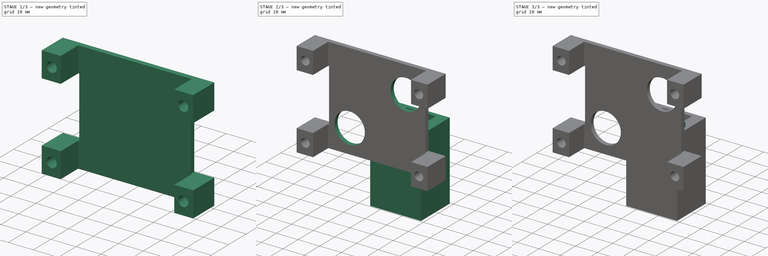
[diagram: build sequence overview — one tinted view per stage of 3, left to right]
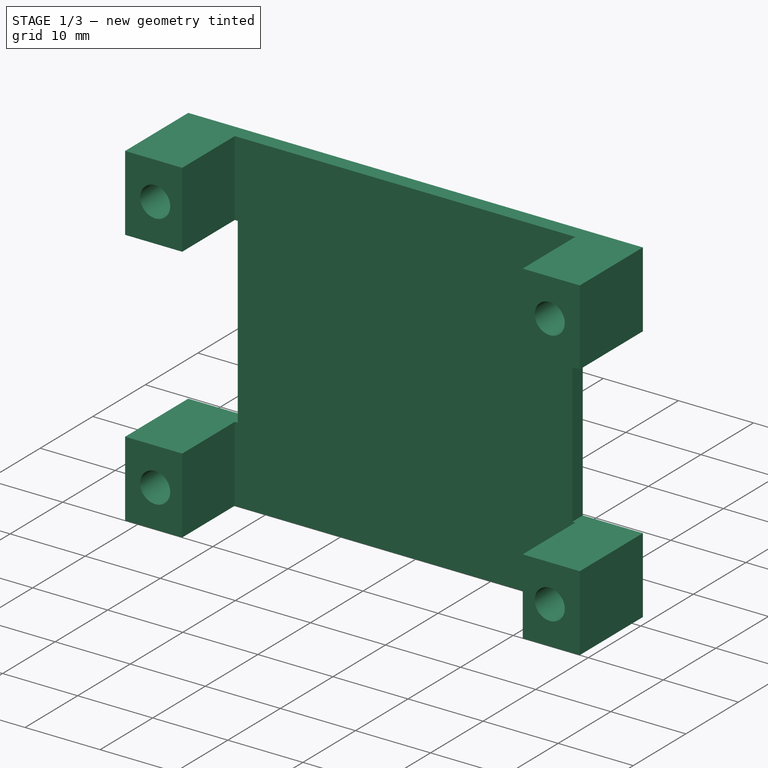
[diagram: stage 1 of 3 — iso view after this stage's code; geometry added in this stage tinted green]
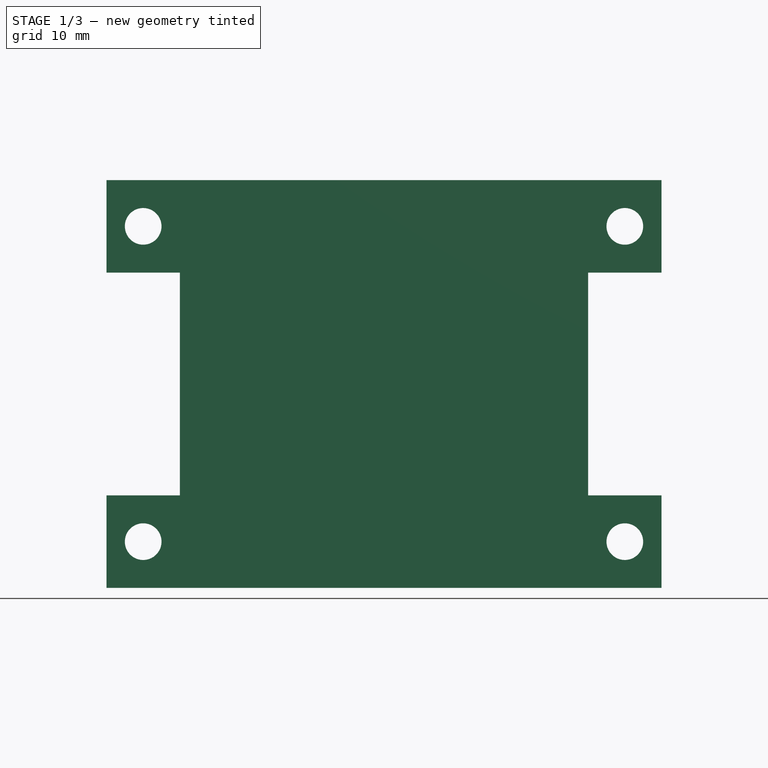
[diagram: stage 1 of 3 — front view after this stage's code; geometry added in this stage tinted green]
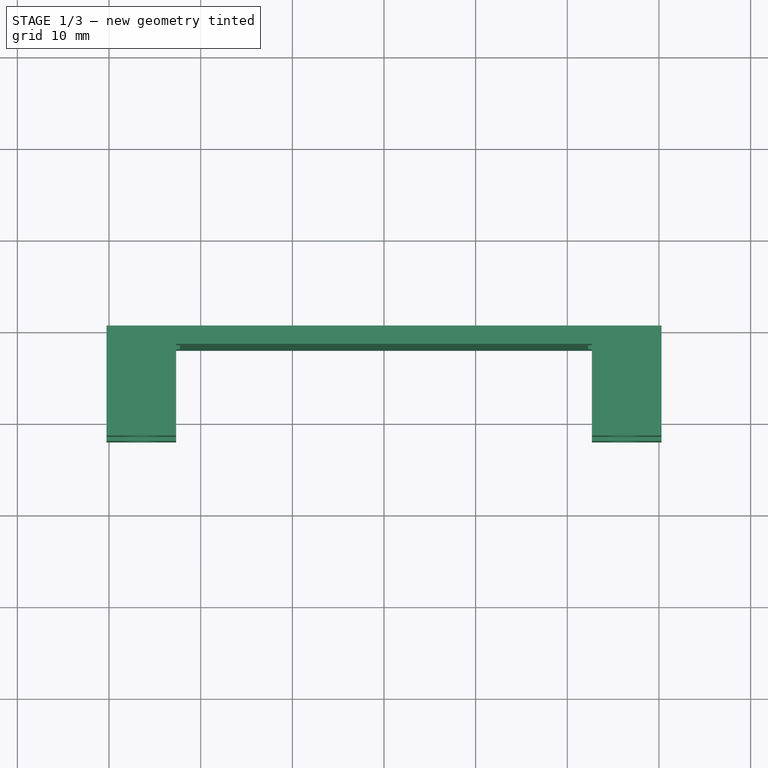
[diagram: stage 1 of 3 — top view after this stage's code; geometry added in this stage tinted green]
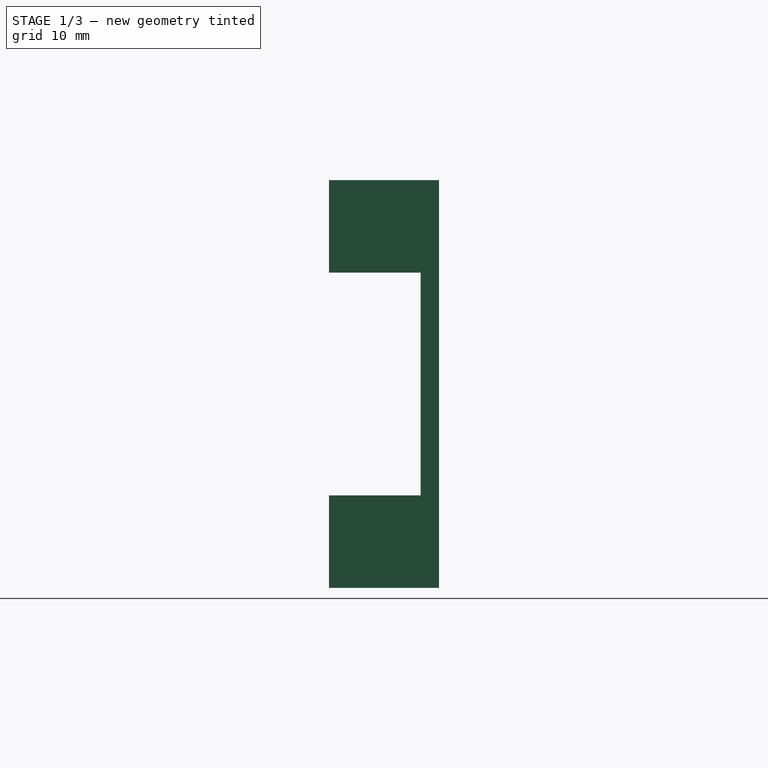
[diagram: stage 1 of 3 — right view after this stage's code; geometry added in this stage tinted green]
FCSTD DOCUMENT  (FreeCAD 2023.521R14555 (Git shallow))
Label: Lid
License: All rights reserved
LicenseURL: http://en.wikipedia.org/wiki/All_rights_reserved
objects: Sketcher::SketchObject×7, PartDesign::Pad×5, PartDesign::Pocket×2, PartDesign::Plane×1, PartDesign::Body×1, App::Part×1
note: 37 computed .brp shape members not serialized (recipe doc carries the construction recipe); baked Part::Feature solids carry a one-line shape summary decoded from their .brp

FEATURE [Sketcher::SketchObject] Sketch
  ArcFitTolerance = 0
  AttachmentSupport = -> [XZ_Plane]
  ExternalBSplineMaxDegree = 0
  ExternalBSplineTolerance = 0
  FullyConstrained = true
  InternalTolerance = 1e-06
  InvalidShape = false
  MakeInternals = false
  MapMode = 5
  Placement = pos=(0,0,0) rot=(1,0,0;1.5708rad)
  Support = -> [XZ_Plane]
  TreeRank = 0
  ValidateShape = false
  sketch-geometry (21):
    g0: LineSegment StartX=-22.275 StartY=22.25 StartZ=0 EndX=22.275 EndY=22.25 EndZ=0
    g1: LineSegment StartX=22.275 StartY=-22.25 StartZ=0 EndX=-22.275 EndY=-22.25 EndZ=0
    g2: GeomPoint [constr] X=0 Y=0 Z=0
    g3: LineSegment StartX=-22.275 StartY=22.25 StartZ=0 EndX=-30.275 EndY=22.25 EndZ=0
    g4: LineSegment StartX=-30.275 StartY=22.25 StartZ=0 EndX=-30.275 EndY=12.15 EndZ=0
    g5: LineSegment StartX=-30.275 StartY=12.15 StartZ=0 EndX=-22.275 EndY=12.15 EndZ=0
    g6: LineSegment StartX=-22.275 StartY=12.15 StartZ=0 EndX=-22.275 EndY=-12.15 EndZ=0
    g7: LineSegment StartX=-22.275 StartY=-12.15 StartZ=0 EndX=-30.275 EndY=-12.15 EndZ=0
    g8: LineSegment StartX=-30.275 StartY=-12.15 StartZ=0 EndX=-30.275 EndY=-22.25 EndZ=0
    g9: LineSegment StartX=-30.275 StartY=-22.25 StartZ=0 EndX=-22.275 EndY=-22.25 EndZ=0
    g10: LineSegment StartX=22.275 StartY=22.25 StartZ=0 EndX=30.275 EndY=22.25 EndZ=0
    g11: LineSegment StartX=30.275 StartY=22.25 StartZ=0 EndX=30.275 EndY=12.15 EndZ=0
    g12: LineSegment StartX=30.275 StartY=12.15 StartZ=0 EndX=22.275 EndY=12.15 EndZ=0
    g13: LineSegment StartX=22.275 StartY=12.15 StartZ=0 EndX=22.275 EndY=-12.15 EndZ=0
    g14: LineSegment StartX=22.275 StartY=-12.15 StartZ=0 EndX=30.275 EndY=-12.15 EndZ=0
    g15: LineSegment StartX=30.275 StartY=-12.15 StartZ=0 EndX=30.275 EndY=-22.25 EndZ=0
    g16: LineSegment StartX=30.275 StartY=-22.25 StartZ=0 EndX=22.275 EndY=-22.25 EndZ=0
    g17: Circle CenterX=-26.275 CenterY=17.2 CenterZ=0 NormalX=0 NormalY=0 NormalZ=1 AngleXU=0 Radius=2
    g18: Circle CenterX=26.275 CenterY=17.2 CenterZ=0 NormalX=0 NormalY=0 NormalZ=1 AngleXU=0 Radius=2
    g19: Circle CenterX=26.275 CenterY=-17.2 CenterZ=0 NormalX=0 NormalY=0 NormalZ=1 AngleXU=0 Radius=2
    g20: Circle CenterX=-26.275 CenterY=-17.2 CenterZ=0 NormalX=0 NormalY=0 NormalZ=1 AngleXU=0 Radius=2
  constraints (56):
    c: Horizontal(g0)
    c: Horizontal(g1)
    c: Symmetric(g0,g1,g2)
    c: Coincident(g2,g-1)
    c: DistanceX(g0,g0) = 44.55
    c: Coincident(g3,g0)
    c: Horizontal(g3)
    c: Coincident(g4,g3)
    c: Vertical(g4)
    c: Coincident(g5,g4)
    c: Horizontal(g5)
    c: Coincident(g6,g5)
    c: Vertical(g6)
    c: Coincident(g7,g6)
    c: Horizontal(g7)
    c: Coincident(g8,g7)
    c: Vertical(g8)
    c: Coincident(g9,g8)
    c: Horizontal(g9)
    c: Coincident(g1,g9)
    c: Vertical(g1,g0)
    c: DistanceY(g8,g3) = 44.5
    c: Equal(g4,g8)
    c: Coincident(g10,g0)
    c: Horizontal(g10)
    c: Coincident(g11,g10)
    c: Vertical(g11)
    c: Coincident(g12,g11)
    c: Horizontal(g12)
    c: Coincident(g13,g12)
    c: Horizontal(g14)
    c: Vertical(g15)
    c: Coincident(g16,g15)
    c: Horizontal(g16)
    c: Coincident(g1,g16)
    c: Equal(g8,g15)
    c: Equal(g15,g11)
    c: Coincident(g14,g15)
    c: Vertical(g0,g1)
    c: DistanceY(g15,g15) = 10.1
    c: DistanceX(g14,g14) = 8
    c: Equal(g12,g14)
    c: Equal(g14,g7)
    c: Equal(g7,g5)
    c: Vertical(g5,g0)
    c: Coincident(g13,g14)
    c: Vertical(g13)
    c: Vertical(g13,g1)
    c: Equal(g20,g17)
    c: Equal(g17,g18)
    c: Equal(g18,g19)
    c: Symmetric(g5,g3,g17)
    c: Diameter(g17) = 4
    c: Symmetric(g6,g8,g20)
    c: Symmetric(g13,g15,g19)
    c: Symmetric(g0,g11,g18)
FEATURE [PartDesign::Pad] Pad
  AddSubType = 0
  AutoTaperInnerAngle = true
  CheckUpToFaceLimits = true
  ClaimChildren = false
  Direction = (0,-1,-2e-16)
  Fit = 0
  FitJoin = 0
  InnerFit = 0
  InnerFitJoin = 0
  InvalidShape = false
  Length = 2
  Length2 = 10
  NewSolid = false
  Profile = -> Sketch
  ReferenceAxis = -> Sketch [N_Axis]
  Suppress = false
  TaperInnerAngle = 0
  TaperInnerAngleRev = 0
  TreeRank = 0
  Type = 0
  ValidateShape = true
  _ProfileBasedVersion = 0
FEATURE [Sketcher::SketchObject] Sketch001
  ArcFitTolerance = 0
  AttachmentSupport = -> [Pad]
  ExternalBSplineMaxDegree = 0
  ExternalBSplineTolerance = 0
  ExternalGeometry = -> [Pad]
  FullyConstrained = true
  InternalTolerance = 1e-06
  InvalidShape = false
  MakeInternals = false
  MapMode = 5
  Placement = pos=(0,-2,-4e-16) rot=(1,0,0;1.5708rad)
  Support = -> [Pad]
  TreeRank = 0
  ValidateShape = false
  sketch-geometry (20):
    g0: LineSegment StartX=-30.275 StartY=22.25 StartZ=0 EndX=-22.675 EndY=22.25 EndZ=0
    g1: LineSegment StartX=-22.675 StartY=22.25 StartZ=0 EndX=-22.675 EndY=12.15 EndZ=0
    g2: LineSegment StartX=-22.675 StartY=12.15 StartZ=0 EndX=-30.275 EndY=12.15 EndZ=0
    g3: LineSegment StartX=-30.275 StartY=12.15 StartZ=0 EndX=-30.275 EndY=22.25 EndZ=0
    g4: LineSegment StartX=-30.275 StartY=-22.25 StartZ=0 EndX=-22.675 EndY=-22.25 EndZ=0
    g5: LineSegment StartX=-22.675 StartY=-22.25 StartZ=0 EndX=-22.675 EndY=-12.15 EndZ=0
    g6: LineSegment StartX=-22.675 StartY=-12.15 StartZ=0 EndX=-30.275 EndY=-12.15 EndZ=0
    g7: LineSegment StartX=-30.275 StartY=-12.15 StartZ=0 EndX=-30.275 EndY=-22.25 EndZ=0
    g8: LineSegment StartX=30.275 StartY=-22.25 StartZ=0 EndX=22.675 EndY=-22.25 EndZ=0
    g9: LineSegment StartX=22.675 StartY=-22.25 StartZ=0 EndX=22.675 EndY=-12.15 EndZ=0
    g10: LineSegment StartX=22.675 StartY=-12.15 StartZ=0 EndX=30.275 EndY=-12.15 EndZ=0
    g11: LineSegment StartX=30.275 StartY=-12.15 StartZ=0 EndX=30.275 EndY=-22.25 EndZ=0
    g12: LineSegment StartX=30.275 StartY=22.25 StartZ=0 EndX=22.675 EndY=22.25 EndZ=0
    g13: LineSegment StartX=22.675 StartY=22.25 StartZ=0 EndX=22.675 EndY=12.15 EndZ=0
    g14: LineSegment StartX=22.675 StartY=12.15 StartZ=0 EndX=30.275 EndY=12.15 EndZ=0
    g15: LineSegment StartX=30.275 StartY=12.15 StartZ=0 EndX=30.275 EndY=22.25 EndZ=0
    g16: Circle CenterX=26.275 CenterY=17.2 CenterZ=0 NormalX=0 NormalY=0 NormalZ=1 AngleXU=0 Radius=2
    g17: Circle CenterX=26.275 CenterY=-17.2 CenterZ=0 NormalX=0 NormalY=0 NormalZ=1 AngleXU=0 Radius=2
    g18: Circle CenterX=-26.275 CenterY=-17.2 CenterZ=0 NormalX=0 NormalY=0 NormalZ=1 AngleXU=0 Radius=2
    g19: Circle CenterX=-26.275 CenterY=17.2 CenterZ=0 NormalX=0 NormalY=0 NormalZ=1 AngleXU=0 Radius=2
  constraints (52):
    c: Coincident(g0,g1)
    c: Coincident(g1,g2)
    c: Coincident(g2,g3)
    c: Coincident(g3,g0)
    c: Horizontal(g0)
    c: Horizontal(g2)
    c: Vertical(g1)
    c: Vertical(g3)
    c: Coincident(g0,g-3)
    c: Horizontal(g-4,g2)
    c: DistanceX(g2,g2) = 7.6
    c: Coincident(g4,g5)
    c: Coincident(g5,g6)
    c: Coincident(g6,g7)
    c: Coincident(g7,g4)
    c: Horizontal(g4)
    c: Horizontal(g6)
    c: Vertical(g5)
    c: Vertical(g7)
    c: Coincident(g4,g-8)
    c: Coincident(g8,g9)
    c: Coincident(g9,g10)
    c: Coincident(g10,g11)
    c: Coincident(g11,g8)
    c: Horizontal(g8)
    c: Horizontal(g10)
    c: Vertical(g9)
    c: Vertical(g11)
    c: Coincident(g8,g-7)
    c: Coincident(g12,g13)
    c: Coincident(g13,g14)
    c: Coincident(g14,g15)
    c: Coincident(g15,g12)
    c: Horizontal(g12)
    c: Horizontal(g14)
    c: Vertical(g13)
    c: Vertical(g15)
    c: Coincident(g12,g-6)
    c: Equal(g2,g14)
    c: Equal(g14,g8)
    c: Equal(g8,g4)
    c: Equal(g5,g1)
    c: Equal(g1,g15)
    c: Equal(g15,g11)
    c: Coincident(g16,g-9)
    c: Coincident(g18,g-11)
    c: Coincident(g17,g-10)
    c: Coincident(g19,g-12)
    c: Equal(g16,g-9)
    c: Equal(g-9,g17)
    c: Equal(g17,g18)
    c: Equal(g18,g19)
FEATURE [PartDesign::Pad] Pad001
  AddSubType = 0
  AutoTaperInnerAngle = true
  BaseFeature = -> Pad
  CheckUpToFaceLimits = true
  ClaimChildren = false
  Direction = (0,-1,-2e-16)
  Fit = 0
  FitJoin = 0
  InnerFit = 0
  InnerFitJoin = 0
  InvalidShape = false
  Length = 10
  Length2 = 10
  NewSolid = false
  Profile = -> Sketch001
  ReferenceAxis = -> Sketch001 [N_Axis]
  Suppress = false
  TaperInnerAngle = 0
  TaperInnerAngleRev = 0
  TreeRank = 0
  Type = 0
  ValidateShape = true
  _ProfileBasedVersion = 0
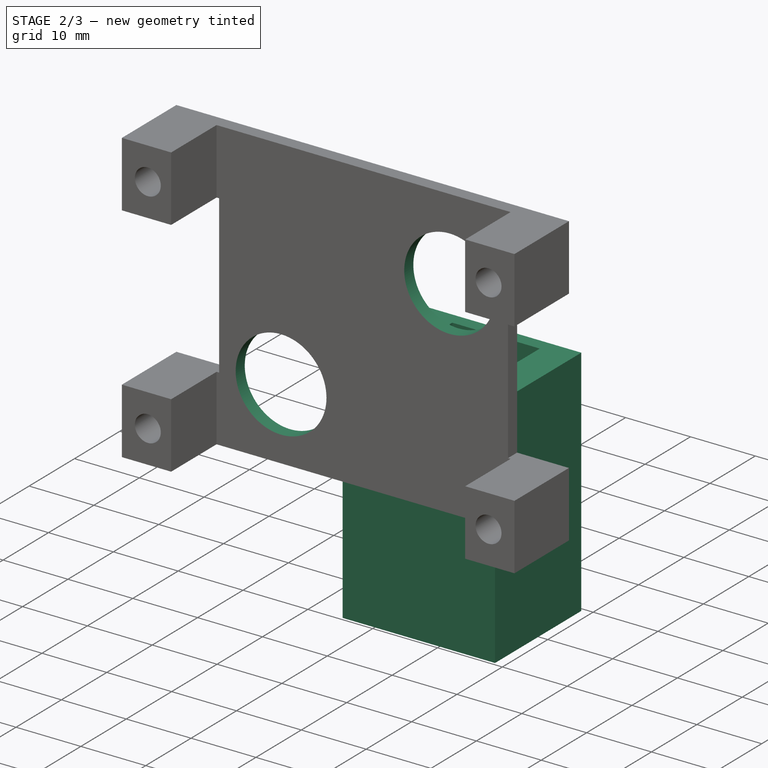
[diagram: stage 2 of 3 — iso view after this stage's code; geometry added in this stage tinted green]
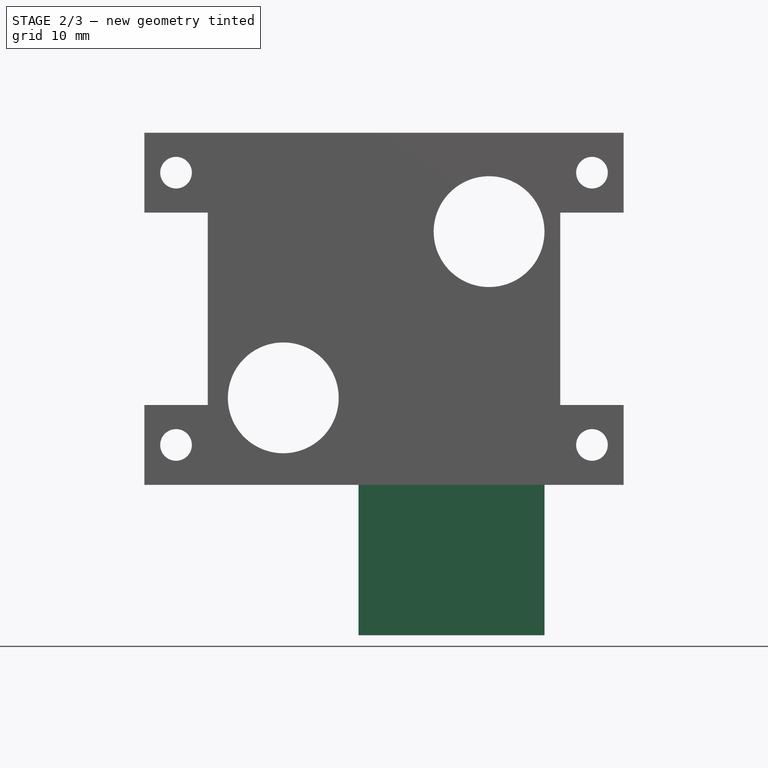
[diagram: stage 2 of 3 — front view after this stage's code; geometry added in this stage tinted green]
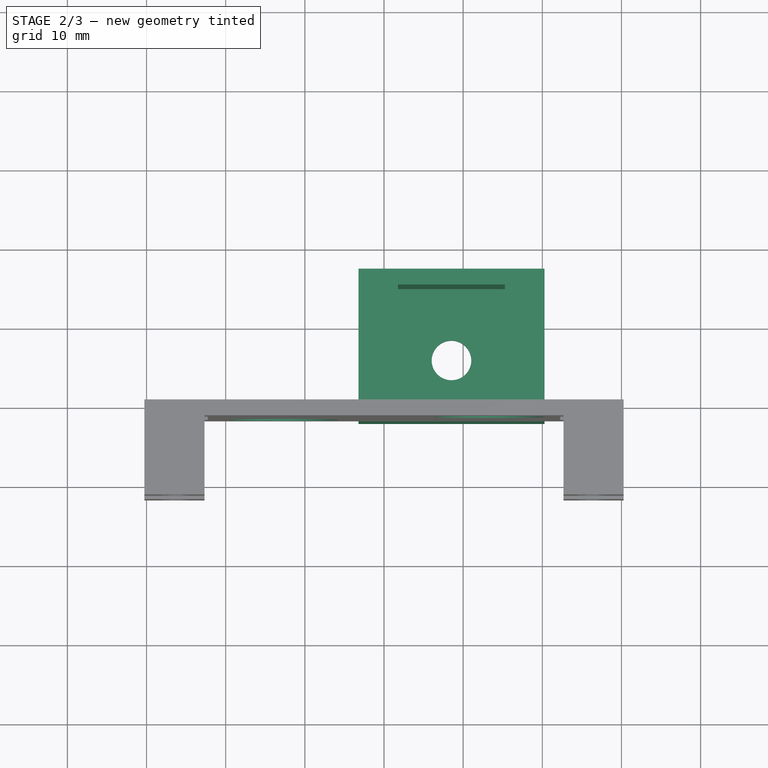
[diagram: stage 2 of 3 — top view after this stage's code; geometry added in this stage tinted green]
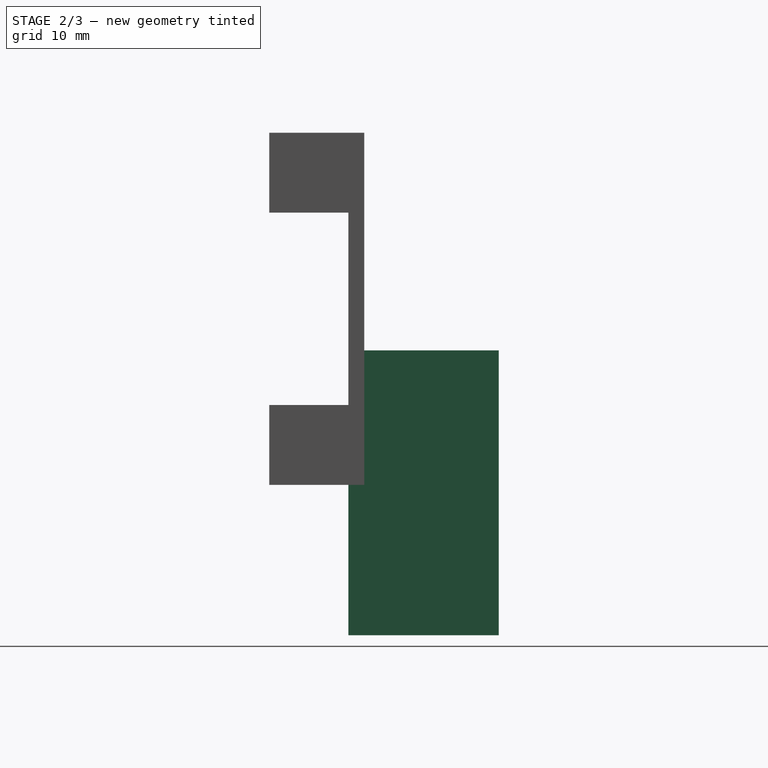
[diagram: stage 2 of 3 — right view after this stage's code; geometry added in this stage tinted green]
FEATURE [Sketcher::SketchObject] Sketch002
  ArcFitTolerance = 0
  AttachmentSupport = -> [Pad001]
  ExternalBSplineMaxDegree = 0
  ExternalBSplineTolerance = 0
  ExternalGeometry = -> [Pad001]
  FullyConstrained = true
  InternalTolerance = 1e-06
  InvalidShape = false
  MakeInternals = false
  MapMode = 5
  Placement = pos=(0,0,0) rot=(0,0.707107,0.707107;3.14159rad)
  Support = -> [Pad001]
  TreeRank = 0
  ValidateShape = false
  sketch-geometry (2):
    g0: Circle CenterX=-13.275 CenterY=9.75 CenterZ=0 NormalX=0 NormalY=0 NormalZ=1 AngleXU=0 Radius=7
    g1: Circle CenterX=12.725 CenterY=-11.25 CenterZ=0 NormalX=0 NormalY=0 NormalZ=1 AngleXU=0 Radius=7
  constraints (6):
    c: DistanceY(g1,g-3) = -11
    c: DistanceY(g0,g-3) = -32
    c: DistanceX(g0,g-3) = -9
    c: DistanceX(g1,g-3) = -35
    c: Diameter(g0) = 14
    c: Equal(g0,g1)
FEATURE [PartDesign::Pocket] Pocket
  AddSubType = 1
  AutoTaperInnerAngle = true
  BaseFeature = -> Pad001
  CheckUpToFaceLimits = true
  ClaimChildren = false
  Direction = (0,-1,-2e-16)
  Fit = 0
  FitJoin = 0
  InnerFit = 0
  InnerFitJoin = 0
  InvalidShape = false
  Length = 5
  Length2 = 5
  NewSolid = false
  Profile = -> Sketch002
  ReferenceAxis = -> Sketch002 [N_Axis]
  Suppress = false
  TaperInnerAngle = 0
  TaperInnerAngleRev = 0
  TreeRank = 0
  Type = 1
  ValidateShape = true
  _ProfileBasedVersion = 0
  _Version = 0
FEATURE [PartDesign::Plane] DatumPlane
  AttachmentOffset = pos=(0,0,-17) rot=(0,0,1;0rad)
  InvalidShape = false
  Length = 60.55
  MapMode = 5
  MinimumLength = 10
  MinimumWidth = 10
  Placement = pos=(0,-1.2e-15,-5.25) rot=(1,0,0;3.14159rad)
  ResizeMode = 0
  TreeRank = 0
  ValidateShape = false
  Width = 12
FEATURE [Sketcher::SketchObject] Sketch004
  ArcFitTolerance = 0
  AttachmentSupport = -> [DatumPlane]
  ExternalBSplineMaxDegree = 0
  ExternalBSplineTolerance = 0
  ExternalGeometry = -> [Pocket]
  FullyConstrained = true
  InternalTolerance = 1e-06
  InvalidShape = false
  MakeInternals = false
  MapMode = 5
  Placement = pos=(0,-1.2e-15,-5.25) rot=(1,0,0;3.14159rad)
  Support = -> [DatumPlane]
  TreeRank = 0
  ValidateShape = false
  sketch-geometry (11):
    g0: LineSegment StartX=1.775 StartY=-8.9e-15 StartZ=0 EndX=1.775 EndY=-15 EndZ=0
    g1: LineSegment StartX=1.775 StartY=-15 StartZ=0 EndX=15.275 EndY=-15 EndZ=0
    g2: LineSegment StartX=15.275 StartY=-15 StartZ=0 EndX=15.275 EndY=-8.9e-15 EndZ=0
    g3: LineSegment StartX=-3.225 StartY=0 StartZ=0 EndX=-3.225 EndY=-17 EndZ=0
    g4: LineSegment StartX=-3.225 StartY=-17 StartZ=0 EndX=20.275 EndY=-17 EndZ=0
    g5: LineSegment StartX=20.275 StartY=-17 StartZ=0 EndX=20.275 EndY=0 EndZ=0
    g6: LineSegment StartX=-3.225 StartY=0 StartZ=0 EndX=-3.225 EndY=2 EndZ=0
    g7: LineSegment StartX=-3.225 StartY=2 StartZ=0 EndX=20.275 EndY=2 EndZ=0
    g8: LineSegment StartX=20.275 StartY=2 StartZ=0 EndX=20.275 EndY=0 EndZ=0
    g9: LineSegment [constr] StartX=15.275 StartY=-15 StartZ=0 EndX=20.275 EndY=-15 EndZ=0
    g10: LineSegment StartX=1.775 StartY=-8.9e-15 StartZ=0 EndX=15.275 EndY=-8.9e-15 EndZ=0
  constraints (33):
    c: Coincident(g0,g1)
    c: Coincident(g1,g2)
    c: Horizontal(g1)
    c: Vertical(g0)
    c: Vertical(g2)
    c: DistanceY(g2,g2) = 15
    c: DistanceX(g0,g2) = 13.5
    c: PointOnObject(g3,g-1)
    c: Vertical(g3)
    c: Horizontal(g4)
    c: Vertical(g5)
    c: PointOnObject(g5,g-1)
    c: Coincident(g3,g4)
    c: Coincident(g4,g5)
    c: DistanceX(g3,g0) = 5
    c: DistanceY(g3,g0) = 2
    c: Vertical(g6)
    c: Horizontal(g7)
    c: Coincident(g7,g8)
    c: Vertical(g8)
    c: Coincident(g3,g6)
    c: Coincident(g6,g7)
    c: Coincident(g5,g8)
    c: Coincident(g9,g1)
    c: Horizontal(g9)
    c: Vertical(g5,g9)
    c: DistanceX(g9,g9) = 5
    c: Coincident(g10,g0)
    c: Coincident(g10,g2)
    c: Horizontal(g-4,g6)
    c: Horizontal(g10)
    c: Horizontal(g0,g-3)
    c: DistanceX(g7,g-4) = 2
FEATURE [PartDesign::Pad] Pad003
  AddSubType = 0
  AutoTaperInnerAngle = true
  BaseFeature = -> Pocket
  CheckUpToFaceLimits = true
  ClaimChildren = false
  Direction = (0,-1e-16,-1)
  Fit = 0
  FitJoin = 0
  InnerFit = 0
  InnerFitJoin = 0
  InvalidShape = false
  Length = 34
  Length2 = 10
  NewSolid = false
  Profile = -> Sketch004
  ReferenceAxis = -> Sketch004 [N_Axis]
  Suppress = false
  TaperInnerAngle = 0
  TaperInnerAngleRev = 0
  TreeRank = 0
  Type = 0
  ValidateShape = true
  _ProfileBasedVersion = 0
FEATURE [Sketcher::SketchObject] Sketch005
  ArcFitTolerance = 0
  AttachmentSupport = -> [Pad003]
  ExternalBSplineMaxDegree = 0
  ExternalBSplineTolerance = 0
  ExternalGeometry = -> [Pad003]
  FullyConstrained = true
  InternalTolerance = 1e-06
  InvalidShape = false
  MakeInternals = false
  MapMode = 5
  Placement = pos=(0,-4.1e-15,-39.25) rot=(1,0,0;3.14159rad)
  Support = -> [Pad003]
  TreeRank = 0
  ValidateShape = false
  sketch-geometry (6):
    g0: LineSegment StartX=-3.225 StartY=-17 StartZ=0 EndX=-3.225 EndY=2 EndZ=0
    g1: LineSegment StartX=-3.225 StartY=2 StartZ=0 EndX=20.275 EndY=2 EndZ=0
    g2: LineSegment StartX=20.275 StartY=-17 StartZ=0 EndX=-3.225 EndY=-17 EndZ=0
    g3: Circle CenterX=8.525 CenterY=-6 CenterZ=0 NormalX=0 NormalY=0 NormalZ=1 AngleXU=0 Radius=2.5
    g4: LineSegment StartX=20.275 StartY=-17 StartZ=0 EndX=20.275 EndY=2 EndZ=0
    g5: GeomPoint [constr] X=8.525 Y=-17 Z=0
  constraints (14):
    c: Coincident(g0,g1)
    c: Coincident(g2,g0)
    c: Horizontal(g1)
    c: DistanceY(g3,g1) = 8
    c: Diameter(g3) = 5
    c: Coincident(g4,g2)
    c: Coincident(g4,g1)
    c: Vertical(g4)
    c: Vertical(g5,g3)
    c: Symmetric(g0,g2,g5)
    c: Coincident(g1,g-3)
    c: Coincident(g0,g-4)
    c: Vertical(g0)
    c: Horizontal(g2)
FEATURE [PartDesign::Pad] Pad004
  AddSubType = 0
  AutoTaperInnerAngle = true
  BaseFeature = -> Pad003
  CheckUpToFaceLimits = true
  ClaimChildren = false
  Direction = (0,-1e-16,-1)
  Fit = 0
  FitJoin = 0
  InnerFit = 0
  InnerFitJoin = 0
  InvalidShape = false
  Length = 2
  Length2 = 10
  NewSolid = false
  Profile = -> Sketch005
  ReferenceAxis = -> Sketch005 [N_Axis]
  Suppress = false
  TaperInnerAngle = 0
  TaperInnerAngleRev = 0
  TreeRank = 0
  Type = 0
  ValidateShape = true
  _ProfileBasedVersion = 0
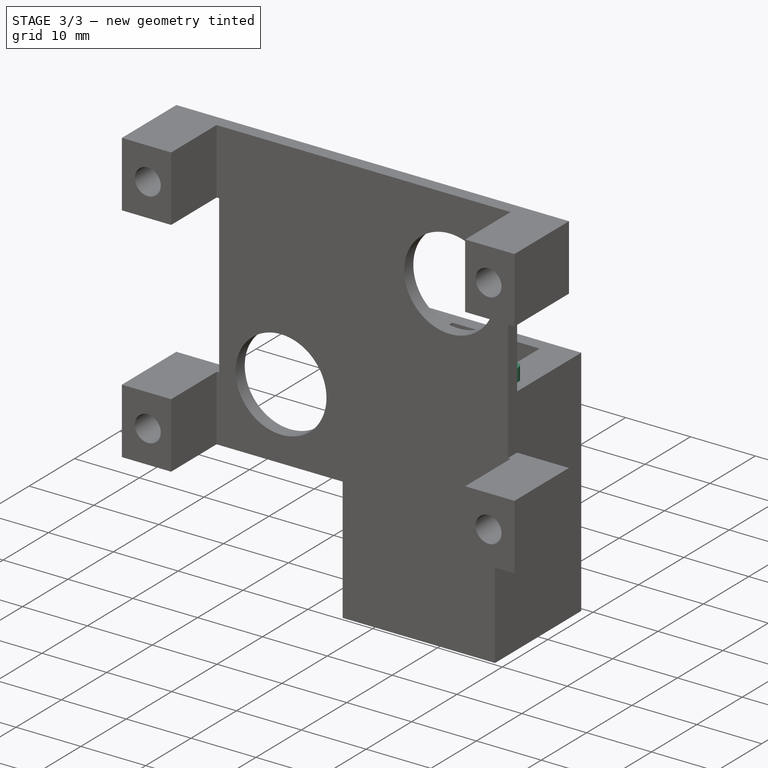
[diagram: stage 3 of 3 — iso view after this stage's code; geometry added in this stage tinted green]
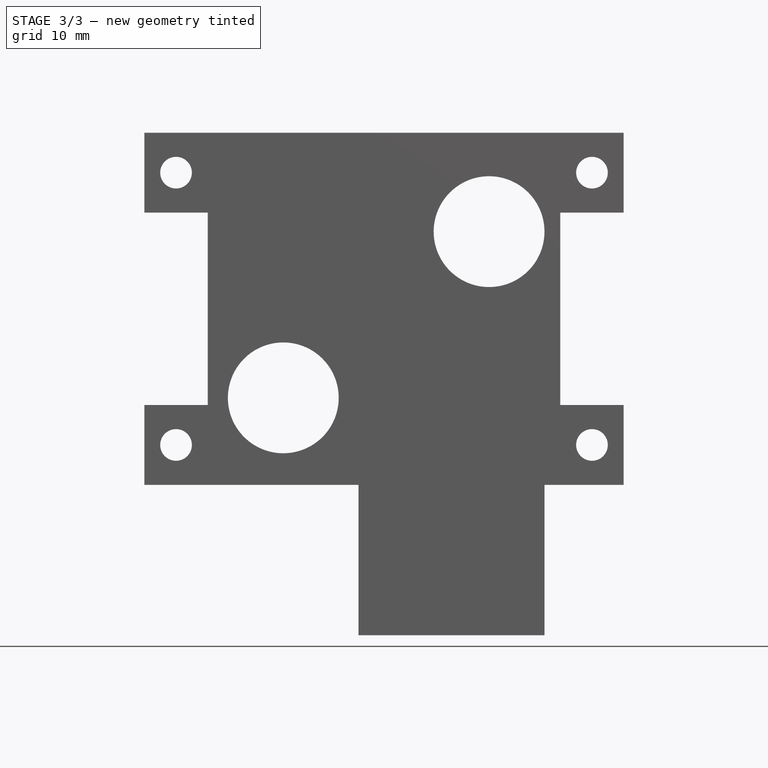
[diagram: stage 3 of 3 — front view after this stage's code; geometry added in this stage tinted green]
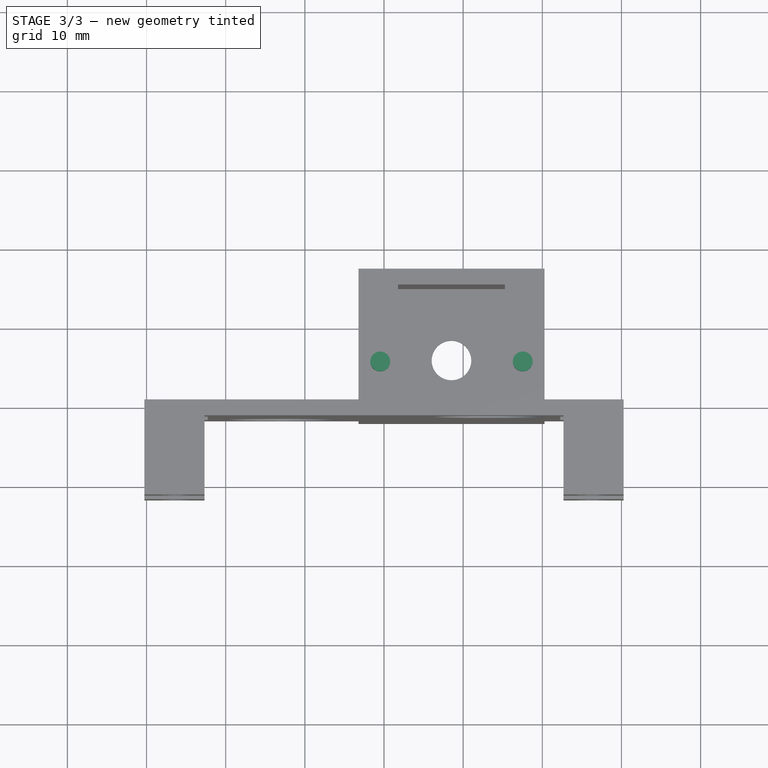
[diagram: stage 3 of 3 — top view after this stage's code; geometry added in this stage tinted green]
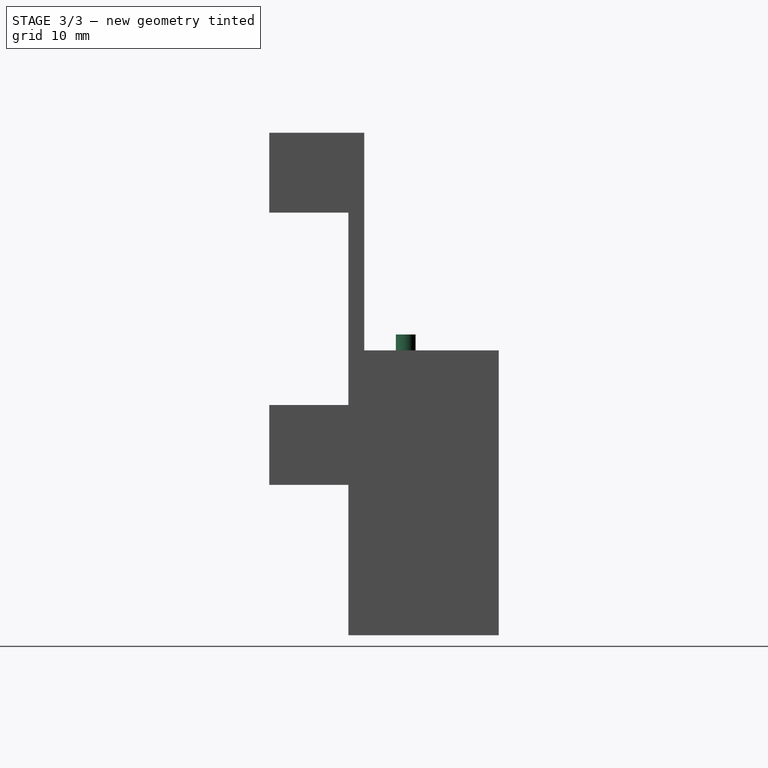
[diagram: stage 3 of 3 — right view after this stage's code; geometry added in this stage tinted green]
FEATURE [Sketcher::SketchObject] Sketch006
  ArcFitTolerance = 0
  AttachmentSupport = -> [Pad004]
  ExternalBSplineMaxDegree = 0
  ExternalBSplineTolerance = 0
  ExternalGeometry = -> [Pad004]
  FullyConstrained = true
  InternalTolerance = 1e-06
  InvalidShape = false
  MakeInternals = false
  MapMode = 5
  Placement = pos=(0,-5e-16,-5.25) rot=(0,0,1;0rad)
  Support = -> [Pad004]
  TreeRank = 0
  ValidateShape = false
  sketch-geometry (4):
    g0: Circle CenterX=-0.475 CenterY=5.25 CenterZ=0 NormalX=0 NormalY=0 NormalZ=1 AngleXU=0 Radius=1.25
    g1: Circle CenterX=17.525 CenterY=5.25 CenterZ=0 NormalX=0 NormalY=0 NormalZ=1 AngleXU=0 Radius=1.25
    g2: GeomPoint [constr] X=8.525 Y=-7.3e-15 Z=0
    g3: GeomPoint [constr] X=8.525 Y=5.25 Z=0
  constraints (9):
    c: Equal(g0,g1)
    c: Diameter(g0) = 2.5
    c: Symmetric(g1,g0,g3)
    c: Vertical(g3,g2)
    c: DistanceX(g0,g1) = 18
    c: Horizontal(g1,g0)
    c: DistanceY(g3,g2) = -5.25
    c: PointOnObject(g2,g-3)
    c: Vertical(g3,g-4)
FEATURE [PartDesign::Pad] Pad005
  AddSubType = 0
  AutoTaperInnerAngle = true
  BaseFeature = -> Pad004
  CheckUpToFaceLimits = true
  ClaimChildren = false
  Direction = (0,1e-16,1)
  Fit = 0
  FitJoin = 0
  InnerFit = 0
  InnerFitJoin = 0
  InvalidShape = false
  Length = 2
  Length2 = 10
  NewSolid = false
  Profile = -> Sketch006
  ReferenceAxis = -> Sketch006 [N_Axis]
  Suppress = false
  TaperInnerAngle = 0
  TaperInnerAngleRev = 0
  TreeRank = 0
  Type = 0
  ValidateShape = true
  _ProfileBasedVersion = 0
FEATURE [Sketcher::SketchObject] Sketch007
  ArcFitTolerance = 0
  AttachmentSupport = -> [Pad005]
  ExternalBSplineMaxDegree = 0
  ExternalBSplineTolerance = 0
  ExternalGeometry = -> [Pad005]
  FullyConstrained = true
  InternalTolerance = 1e-06
  InvalidShape = false
  MakeInternals = false
  MapMode = 5
  Placement = pos=(0,0,0) rot=(0,0.707107,0.707107;3.14159rad)
  Support = -> [Pad005]
  TreeRank = 0
  ValidateShape = false
  sketch-geometry (4):
    g0: Circle CenterX=26.275 CenterY=-17.2 CenterZ=0 NormalX=0 NormalY=0 NormalZ=1 AngleXU=0 Radius=3.5
    g1: Circle CenterX=26.275 CenterY=17.2 CenterZ=0 NormalX=0 NormalY=0 NormalZ=1 AngleXU=0 Radius=3.5
    g2: Circle CenterX=-26.275 CenterY=17.2 CenterZ=0 NormalX=0 NormalY=0 NormalZ=1 AngleXU=0 Radius=3.5
    g3: Circle CenterX=-26.275 CenterY=-17.2 CenterZ=0 NormalX=0 NormalY=0 NormalZ=1 AngleXU=0 Radius=3.5
  constraints (8):
    c: Diameter(g0) = 7
    c: Coincident(g1,g-4)
    c: Coincident(g2,g-6)
    c: Coincident(g3,g-5)
    c: Coincident(g0,g-3)
    c: Equal(g0,g1)
    c: Equal(g1,g2)
    c: Equal(g2,g3)
FEATURE [PartDesign::Pocket] Pocket001
  AddSubType = 1
  AutoTaperInnerAngle = true
  BaseFeature = -> Pad005
  CheckUpToFaceLimits = true
  ClaimChildren = false
  Direction = (0,-1,-2e-16)
  Fit = 0
  FitJoin = 0
  InnerFit = 0
  InnerFitJoin = 0
  InvalidShape = false
  Length = 5
  Length2 = 5
  NewSolid = false
  Profile = -> Sketch007
  ReferenceAxis = -> Sketch007 [N_Axis]
  Suppress = false
  TaperInnerAngle = 0
  TaperInnerAngleRev = 0
  TreeRank = 0
  Type = 0
  ValidateShape = true
  _ProfileBasedVersion = 0
  _Version = 0
FEATURE [PartDesign::Body] Body
  AutoGroupSolids = false
  ClaimAllChildren = false
  ExportMode = 0
  Group = -> [Sketch,Pad,Sketch001,Pad001,Sketch002,Pocket,DatumPlane,Sketch004,Pad003,Sketch005,Pad004,Sketch006,Pad005,Sketch007,Pocket001]
  InvalidShape = false
  Origin = -> Origin
  Tip = -> Pocket001
  TreeRank = 0
  ValidateShape = false
  _ExportChildren = -> [Pad,Pad001,Pocket,DatumPlane,Pad003,Pad004,Pad005,Pocket001]
  _GroupVersion = 1
FEATURE [App::Part] Part  label="Lid"
  ClaimAllChildren = false
  ExportMode = 1
  Group = -> [Body]
  Origin = -> Origin001
  TreeRank = 3
  _ExportChildren = -> [Body]
  _GroupVersion = 1
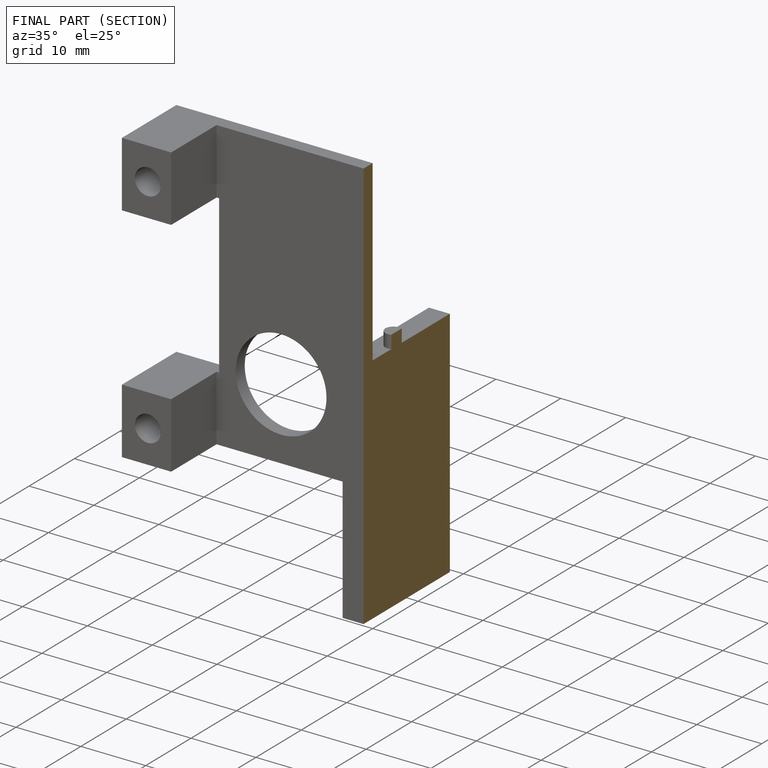
[diagram: finished part — half-section view (interior)]
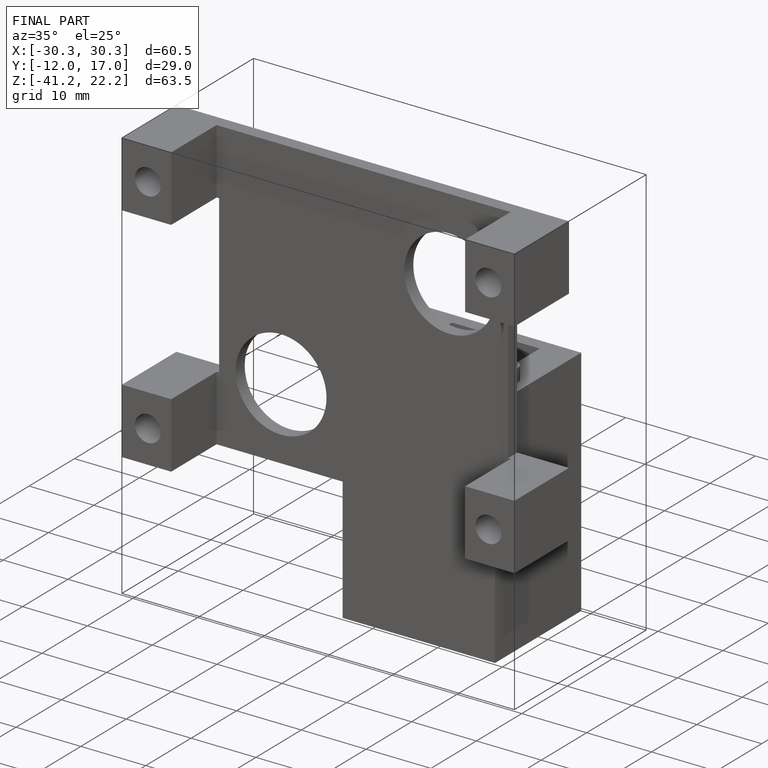
[diagram: finished part — iso view with bounding-box wireframe]
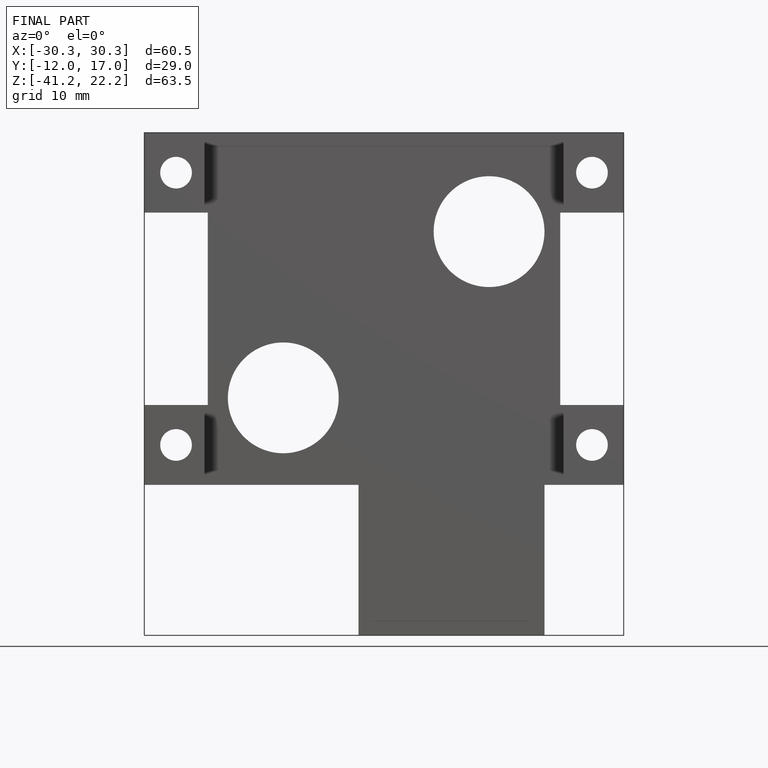
[diagram: finished part — front view with bounding-box wireframe]
